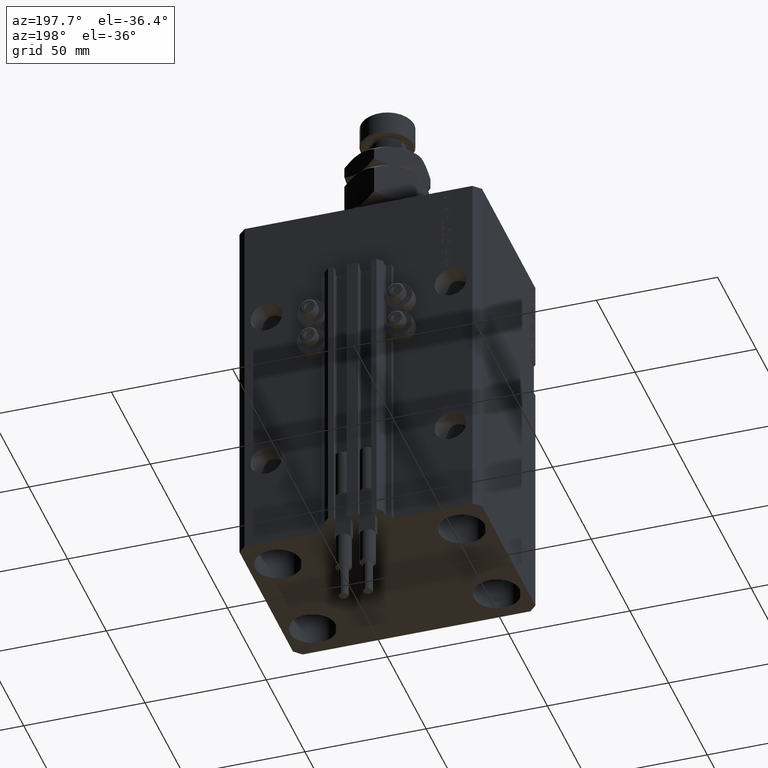
[diagram: clean part render]
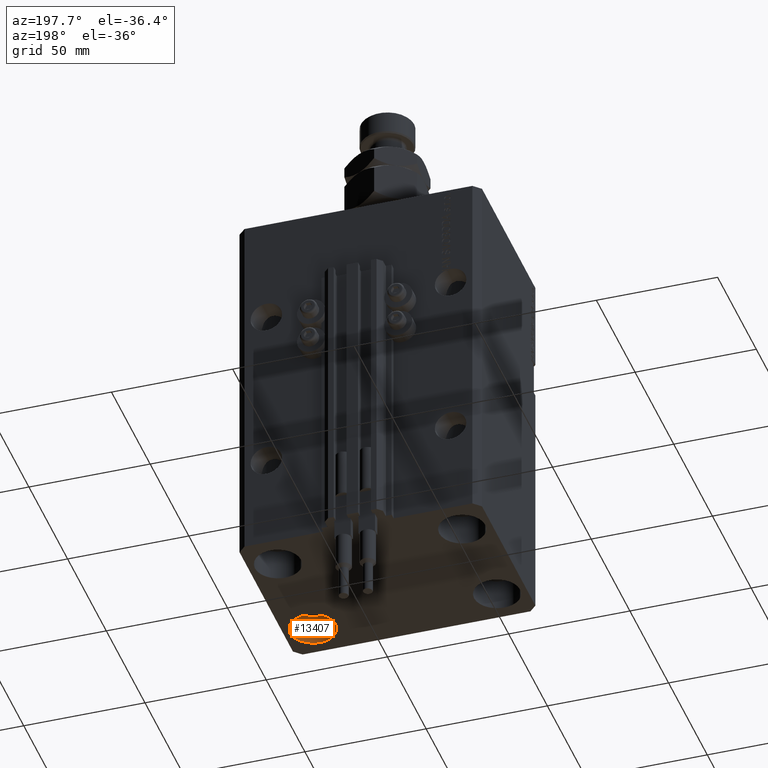
[diagram: same view with one face highlighted and labeled with its STEP entity id]
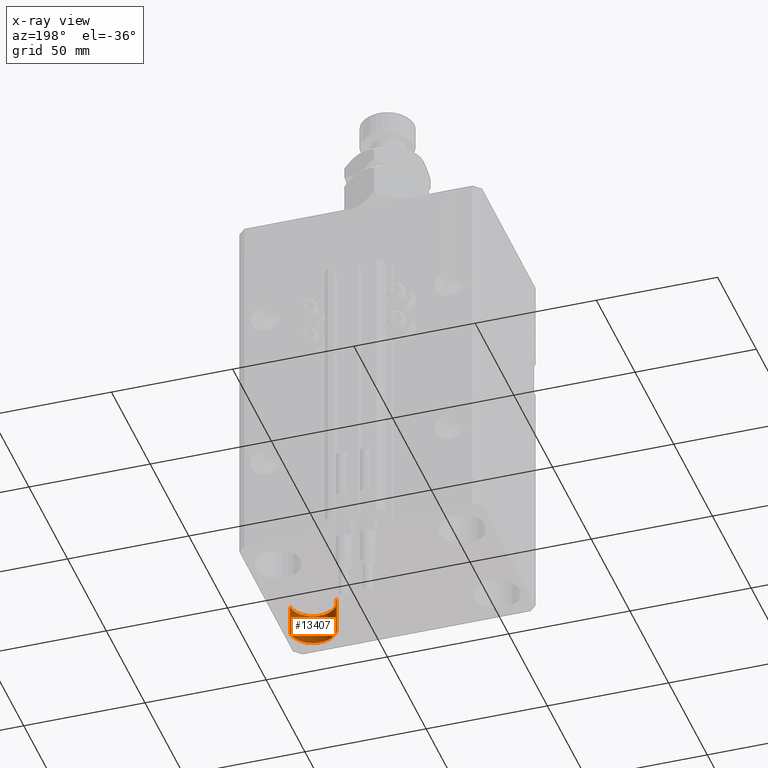
[diagram: x-ray of the same camera — body ghosted, the highlighted face saturated]
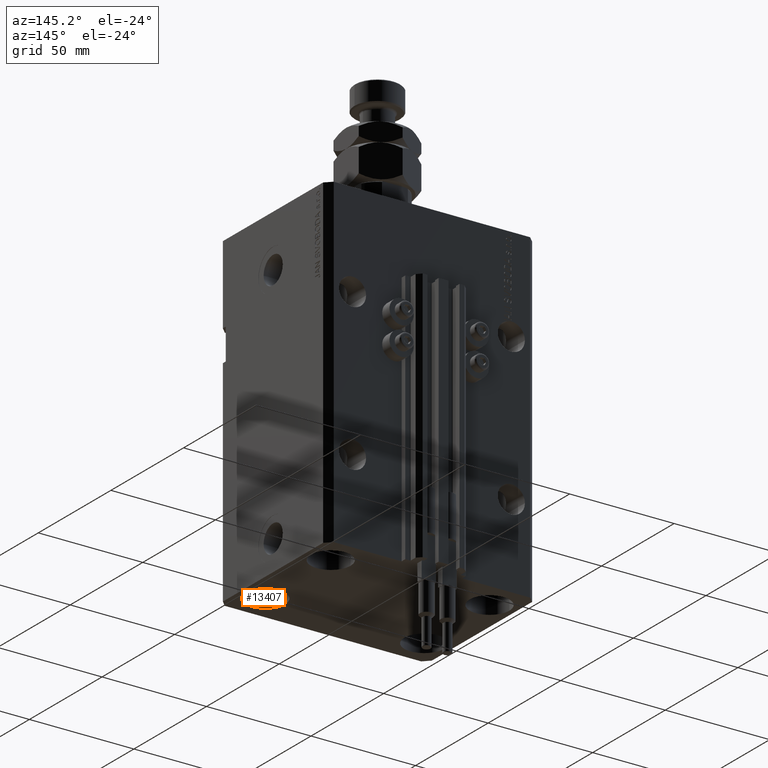
[diagram: same view with one face highlighted and labeled with its STEP entity id]
A machine part, auxiliary view. The second image highlights one B-rep face of the part: STEP entity #13407.
The next image is the same camera in x-ray: the body ghosted, the highlighted face saturated — about 0% of this face is hidden behind the body in this view.
A second angle (auxiliary view) of the same face is appended — the face is thin or edge-on in the first view.
In plain terms, the highlighted cylindrical surface (edge-blend (fillet) strip) has radius 9.5 mm, axis along (-0, -0, -1).
Its self-contained STEP definition (entity closure, byte-faithful):
#1430 = FACE_OUTER_BOUND ( 'NONE', #10912, .T. ) ;
#2137 = DIRECTION ( 'NONE',  ( 1.000000000000000000, 0.000000000000000000, 0.000000000000000000 ) ) ;
#2305 = DIRECTION ( 'NONE',  ( -0.000000000000000000, -0.000000000000000000, -1.000000000000000000 ) ) ;
#2933 = EDGE_CURVE ( 'NONE', #48528, #26450, #3909, .T. ) ;
#3044 = DIRECTION ( 'NONE',  ( -0.000000000000000000, -0.000000000000000000, 1.000000000000000000 ) ) ;
#3909 = CIRCLE ( 'NONE', #28472, 9.500000000000001776 ) ;
#5022 = CYLINDRICAL_SURFACE ( 'NONE', #24255, 9.500000000000001776 ) ;
#6043 = CARTESIAN_POINT ( 'NONE',  ( 47.50000000000000711, -22.50000000000000000, -155.0000000000000000 ) ) ;
#7256 = CARTESIAN_POINT ( 'NONE',  ( 28.50000000000000355, -22.50000000000000000, -142.0000000000000000 ) ) ;
#8360 = DIRECTION ( 'NONE',  ( -1.000000000000000000, 0.000000000000000000, 0.000000000000000000 ) ) ;
#10912 = EDGE_LOOP ( 'NONE', ( #48385, #12718, #29914, #11504 ) ) ;
#11148 = EDGE_CURVE ( 'NONE', #47740, #50257, #19381, .T. ) ;
#11488 = CARTESIAN_POINT ( 'NONE',  ( 38.00000000000000711, -22.50000000000000000, -155.0000000000000000 ) ) ;
#11504 = ORIENTED_EDGE ( 'NONE', *, *, #26303, .F. ) ;
#12718 = ORIENTED_EDGE ( 'NONE', *, *, #27557, .T. ) ;
#13407 = ADVANCED_FACE ( 'NONE', ( #1430 ), #5022, .F. ) ;
#13914 = DIRECTION ( 'NONE',  ( -0.000000000000000000, -0.000000000000000000, 1.000000000000000000 ) ) ;
#14696 = DIRECTION ( 'NONE',  ( -0.000000000000000000, -0.000000000000000000, -1.000000000000000000 ) ) ;
#16416 = VECTOR ( 'NONE', #14696, 1000.000000000000000 ) ;
#19381 = CIRCLE ( 'NONE', #35755, 9.500000000000001776 ) ;
#24104 = LINE ( 'NONE', #39745, #25459 ) ;
#24255 = AXIS2_PLACEMENT_3D ( 'NONE', #35537, #36045, #8360 ) ;
#25459 = VECTOR ( 'NONE', #2305, 1000.000000000000000 ) ;
#25713 = CARTESIAN_POINT ( 'NONE',  ( 38.00000000000000711, -22.50000000000000000, -142.0000000000000000 ) ) ;
#26303 = EDGE_CURVE ( 'NONE', #48528, #47740, #45727, .T. ) ;
#26450 = VERTEX_POINT ( 'NONE', #40567 ) ;
#27557 = EDGE_CURVE ( 'NONE', #26450, #50257, #24104, .T. ) ;
#28472 = AXIS2_PLACEMENT_3D ( 'NONE', #25713, #13914, #2137 ) ;
#29914 = ORIENTED_EDGE ( 'NONE', *, *, #11148, .F. ) ;
#35537 = CARTESIAN_POINT ( 'NONE',  ( 38.00000000000000711, -22.50000000000000000, -142.0000000000000000 ) ) ;
#35755 = AXIS2_PLACEMENT_3D ( 'NONE', #11488, #3044, #43020 ) ;
#36045 = DIRECTION ( 'NONE',  ( -0.000000000000000000, -0.000000000000000000, -1.000000000000000000 ) ) ;
#38797 = CARTESIAN_POINT ( 'NONE',  ( 28.50000000000000355, -22.50000000000000000, -142.0000000000000000 ) ) ;
#39745 = CARTESIAN_POINT ( 'NONE',  ( 47.50000000000000711, -22.50000000000000000, -142.0000000000000000 ) ) ;
#40567 = CARTESIAN_POINT ( 'NONE',  ( 47.50000000000000711, -22.50000000000000000, -142.0000000000000000 ) ) ;
#43020 = DIRECTION ( 'NONE',  ( 1.000000000000000000, 0.000000000000000000, 0.000000000000000000 ) ) ;
#45727 = LINE ( 'NONE', #7256, #16416 ) ;
#47740 = VERTEX_POINT ( 'NONE', #50324 ) ;
#48385 = ORIENTED_EDGE ( 'NONE', *, *, #2933, .T. ) ;
#48528 = VERTEX_POINT ( 'NONE', #38797 ) ;
#50257 = VERTEX_POINT ( 'NONE', #6043 ) ;
#50324 = CARTESIAN_POINT ( 'NONE',  ( 28.50000000000000355, -22.50000000000000000, -155.0000000000000000 ) ) ;